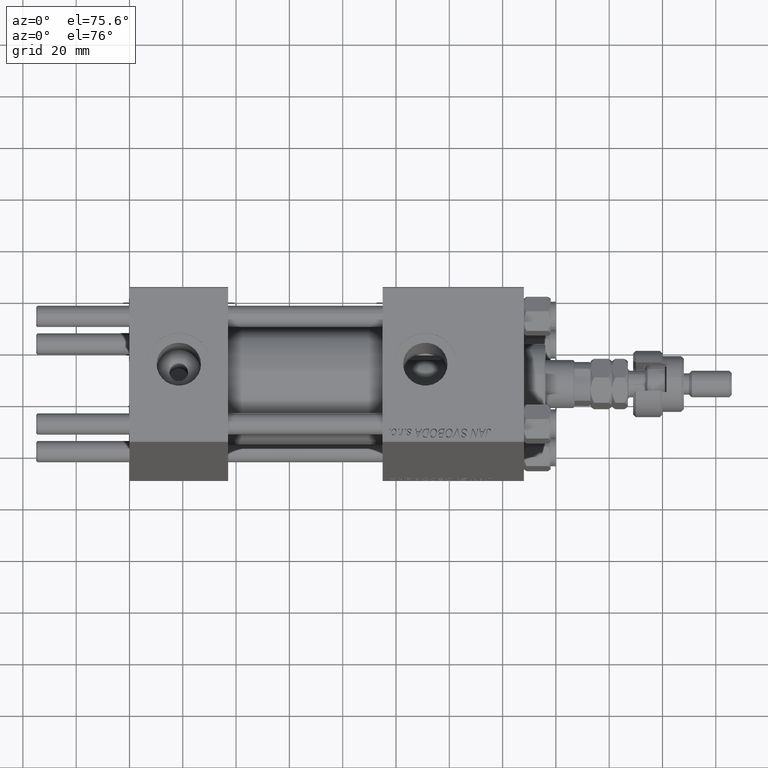
[diagram: clean part render]
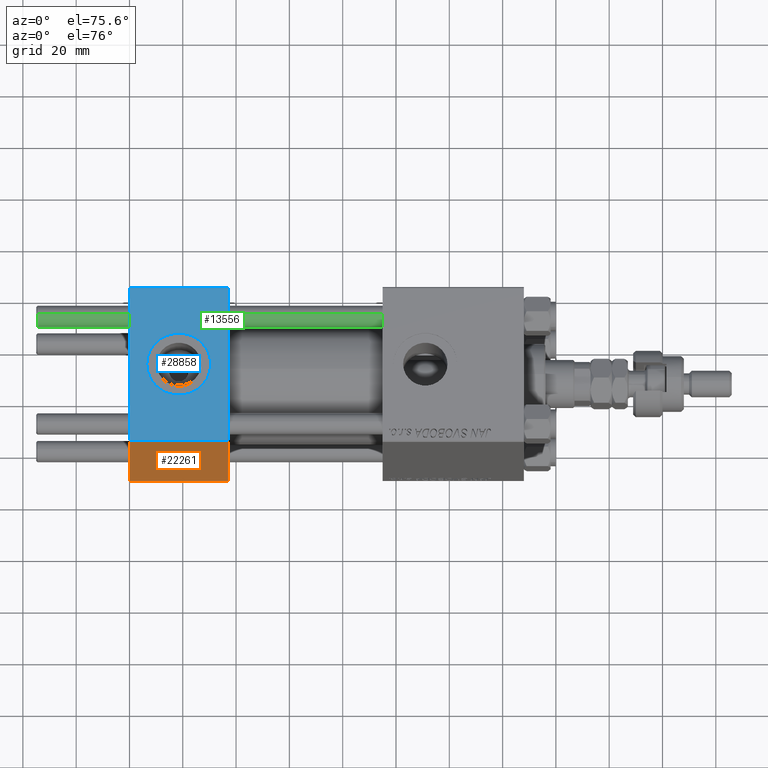
[diagram: same view with three faces highlighted in distinct colors, each labeled with its STEP entity id]
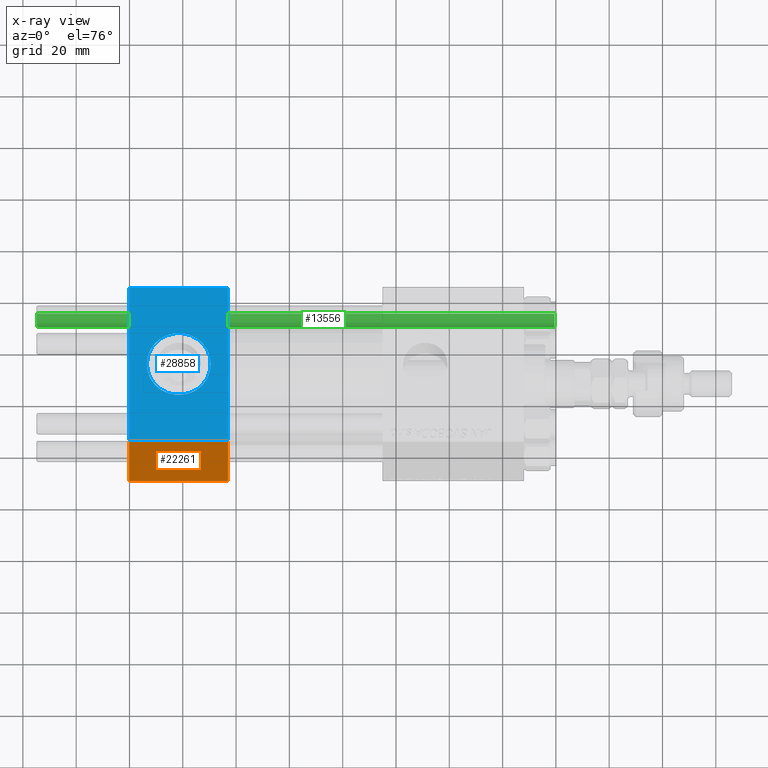
[diagram: x-ray of the same camera — body ghosted, the three highlighted faces saturated]
A machine part, auxiliary view with three faces highlighted in distinct colors.
The next image is the same camera in x-ray (body ghosted, the three faces saturated) — at least one of them is partly hidden behind the body in this view.
Their STEP definitions:

[orange] entity #22261 — the highlighted planar face has unit normal (0, 1, 0).
#1991 = VERTEX_POINT ( 'NONE', #2609 ) ;
#2609 = CARTESIAN_POINT ( 'NONE',  ( 0.000000000000000000, -30.00000000000000000, 29.49999999999999289 ) ) ;
#3968 = CARTESIAN_POINT ( 'NONE',  ( 37.00000000000000000, -30.00000000000000000, -29.50000000000001776 ) ) ;
#6026 = ORIENTED_EDGE ( 'NONE', *, *, #40388, .T. ) ;
#9506 = LINE ( 'NONE', #21505, #15268 ) ;
#11430 = DIRECTION ( 'NONE',  ( 1.000000000000000000, 0.000000000000000000, 0.000000000000000000 ) ) ;
#15268 = VECTOR ( 'NONE', #38299, 1000.000000000000000 ) ;
#15324 = VERTEX_POINT ( 'NONE', #3968 ) ;
#17210 = EDGE_CURVE ( 'NONE', #38322, #15324, #22176, .T. ) ;
#17588 = FACE_OUTER_BOUND ( 'NONE', #46040, .T. ) ;
#19551 = ORIENTED_EDGE ( 'NONE', *, *, #17210, .T. ) ;
#21505 = CARTESIAN_POINT ( 'NONE',  ( 37.00000000000000000, -30.00000000000000000, 29.99999999999999289 ) ) ;
#21845 = CARTESIAN_POINT ( 'NONE',  ( 37.00000000000000000, -30.00000000000000000, 29.99999999999999289 ) ) ;
#22176 = LINE ( 'NONE', #34153, #30881 ) ;
#22261 = ADVANCED_FACE ( 'NONE', ( #17588 ), #33823, .F. ) ;
#22731 = ORIENTED_EDGE ( 'NONE', *, *, #44581, .T. ) ;
#25846 = AXIS2_PLACEMENT_3D ( 'NONE', #21845, #41570, #34093 ) ;
#29792 = CARTESIAN_POINT ( 'NONE',  ( 0.000000000000000000, -30.00000000000000000, -29.50000000000001776 ) ) ;
#30624 = VECTOR ( 'NONE', #35816, 1000.000000000000000 ) ;
#30881 = VECTOR ( 'NONE', #11430, 1000.000000000000000 ) ;
#32319 = LINE ( 'NONE', #36084, #30624 ) ;
#33823 = PLANE ( 'NONE',  #25846 ) ;
#34093 = DIRECTION ( 'NONE',  ( 0.000000000000000000, -0.000000000000000000, 1.000000000000000000 ) ) ;
#34153 = CARTESIAN_POINT ( 'NONE',  ( 37.00000000000000000, -30.00000000000000000, -29.50000000000001776 ) ) ;
#35373 = DIRECTION ( 'NONE',  ( -1.000000000000000000, 0.000000000000000000, 0.000000000000000000 ) ) ;
#35816 = DIRECTION ( 'NONE',  ( 0.000000000000000000, 0.000000000000000000, -1.000000000000000000 ) ) ;
#36084 = CARTESIAN_POINT ( 'NONE',  ( 0.000000000000000000, -30.00000000000000000, 29.99999999999999289 ) ) ;
#38299 = DIRECTION ( 'NONE',  ( 0.000000000000000000, 0.000000000000000000, -1.000000000000000000 ) ) ;
#38322 = VERTEX_POINT ( 'NONE', #29792 ) ;
#40388 = EDGE_CURVE ( 'NONE', #43199, #1991, #47639, .T. ) ;
#40667 = VECTOR ( 'NONE', #35373, 1000.000000000000000 ) ;
#41570 = DIRECTION ( 'NONE',  ( -0.000000000000000000, 1.000000000000000000, 0.000000000000000000 ) ) ;
#42903 = CARTESIAN_POINT ( 'NONE',  ( 37.00000000000000000, -30.00000000000000000, 29.49999999999999289 ) ) ;
#43199 = VERTEX_POINT ( 'NONE', #42903 ) ;
#43375 = EDGE_CURVE ( 'NONE', #43199, #15324, #9506, .T. ) ;
#44581 = EDGE_CURVE ( 'NONE', #1991, #38322, #32319, .T. ) ;
#46040 = EDGE_LOOP ( 'NONE', ( #22731, #19551, #52325, #6026 ) ) ;
#47639 = LINE ( 'NONE', #51899, #40667 ) ;
#51899 = CARTESIAN_POINT ( 'NONE',  ( 37.00000000000000000, -30.00000000000000000, 29.49999999999999289 ) ) ;
#52325 = ORIENTED_EDGE ( 'NONE', *, *, #43375, .F. ) ;

[blue] entity #28858 — the highlighted planar face has unit normal (0, 0, -1).
#461 = CIRCLE ( 'NONE', #44735, 12.00000000000000000 ) ;
#863 = LINE ( 'NONE', #9111, #6737 ) ;
#1402 = ORIENTED_EDGE ( 'NONE', *, *, #46818, .F. ) ;
#1645 = AXIS2_PLACEMENT_3D ( 'NONE', #18842, #18050, #42577 ) ;
#2728 = CARTESIAN_POINT ( 'NONE',  ( 30.50000000000000000, -3.469446951953614978E-15, 29.99999999999999645 ) ) ;
#3384 = VERTEX_POINT ( 'NONE', #49493 ) ;
#3928 = ORIENTED_EDGE ( 'NONE', *, *, #9418, .T. ) ;
#4160 = FACE_OUTER_BOUND ( 'NONE', #40763, .T. ) ;
#5488 = AXIS2_PLACEMENT_3D ( 'NONE', #24404, #16412, #24911 ) ;
#6737 = VECTOR ( 'NONE', #25361, 1000.000000000000000 ) ;
#8415 = FACE_BOUND ( 'NONE', #18447, .T. ) ;
#9063 = LINE ( 'NONE', #9871, #48207 ) ;
#9111 = CARTESIAN_POINT ( 'NONE',  ( 37.00000000000000000, 29.99999999999999289, 30.00000000000000000 ) ) ;
#9396 = LINE ( 'NONE', #24848, #50174 ) ;
#9418 = EDGE_CURVE ( 'NONE', #30332, #33085, #9396, .T. ) ;
#9871 = CARTESIAN_POINT ( 'NONE',  ( 0.000000000000000000, 29.99999999999999289, 30.00000000000000000 ) ) ;
#11897 = PLANE ( 'NONE',  #5488 ) ;
#12856 = CARTESIAN_POINT ( 'NONE',  ( 0.000000000000000000, 29.49999999999999289, 30.00000000000000000 ) ) ;
#15854 = CARTESIAN_POINT ( 'NONE',  ( 6.499999999999997335, -1.999870792976790833E-15, 29.99999999999999645 ) ) ;
#16412 = DIRECTION ( 'NONE',  ( 0.000000000000000000, 1.156482317317871725E-16, -1.000000000000000000 ) ) ;
#18050 = DIRECTION ( 'NONE',  ( 0.000000000000000000, 0.000000000000000000, 1.000000000000000000 ) ) ;
#18447 = EDGE_LOOP ( 'NONE', ( #1402, #29137 ) ) ;
#18842 = CARTESIAN_POINT ( 'NONE',  ( 18.50000000000000000, -3.469446951953614978E-15, 29.99999999999999645 ) ) ;
#19022 = VERTEX_POINT ( 'NONE', #2728 ) ;
#21685 = ORIENTED_EDGE ( 'NONE', *, *, #46486, .T. ) ;
#23508 = VERTEX_POINT ( 'NONE', #26317 ) ;
#23733 = VECTOR ( 'NONE', #29091, 1000.000000000000000 ) ;
#24404 = CARTESIAN_POINT ( 'NONE',  ( 37.00000000000000000, 29.99999999999999289, 30.00000000000000000 ) ) ;
#24848 = CARTESIAN_POINT ( 'NONE',  ( 37.00000000000000000, -29.50000000000000000, 29.99999999999999289 ) ) ;
#24911 = DIRECTION ( 'NONE',  ( 0.000000000000000000, 1.000000000000000000, 1.156482317317871725E-16 ) ) ;
#25361 = DIRECTION ( 'NONE',  ( 0.000000000000000000, -1.000000000000000000, -1.156482317317871725E-16 ) ) ;
#25645 = DIRECTION ( 'NONE',  ( 1.000000000000000000, 0.000000000000000000, 0.000000000000000000 ) ) ;
#26317 = CARTESIAN_POINT ( 'NONE',  ( 0.000000000000000000, 29.49999999999999289, 30.00000000000000000 ) ) ;
#27056 = ORIENTED_EDGE ( 'NONE', *, *, #36061, .T. ) ;
#28858 = ADVANCED_FACE ( 'NONE', ( #8415, #4160 ), #11897, .F. ) ;
#29091 = DIRECTION ( 'NONE',  ( -1.000000000000000000, 0.000000000000000000, 0.000000000000000000 ) ) ;
#29137 = ORIENTED_EDGE ( 'NONE', *, *, #34647, .F. ) ;
#30332 = VERTEX_POINT ( 'NONE', #41593 ) ;
#31534 = DIRECTION ( 'NONE',  ( 1.000000000000000000, 0.000000000000000000, 0.000000000000000000 ) ) ;
#32508 = ORIENTED_EDGE ( 'NONE', *, *, #46508, .F. ) ;
#33085 = VERTEX_POINT ( 'NONE', #35322 ) ;
#34647 = EDGE_CURVE ( 'NONE', #51462, #19022, #461, .T. ) ;
#35010 = DIRECTION ( 'NONE',  ( 0.000000000000000000, 0.000000000000000000, 1.000000000000000000 ) ) ;
#35322 = CARTESIAN_POINT ( 'NONE',  ( 37.00000000000000000, -29.49999999999998579, 29.99999999999999289 ) ) ;
#35537 = CARTESIAN_POINT ( 'NONE',  ( 18.50000000000000000, -3.469446951953614978E-15, 29.99999999999999645 ) ) ;
#36061 = EDGE_CURVE ( 'NONE', #23508, #30332, #9063, .T. ) ;
#36839 = LINE ( 'NONE', #12856, #23733 ) ;
#40763 = EDGE_LOOP ( 'NONE', ( #27056, #3928, #32508, #21685 ) ) ;
#41593 = CARTESIAN_POINT ( 'NONE',  ( 0.000000000000000000, -29.49999999999998579, 29.99999999999999289 ) ) ;
#42119 = DIRECTION ( 'NONE',  ( 0.000000000000000000, -1.000000000000000000, -1.156482317317871725E-16 ) ) ;
#42577 = DIRECTION ( 'NONE',  ( 1.000000000000000000, 0.000000000000000000, 0.000000000000000000 ) ) ;
#44735 = AXIS2_PLACEMENT_3D ( 'NONE', #35537, #35010, #31534 ) ;
#46486 = EDGE_CURVE ( 'NONE', #3384, #23508, #36839, .T. ) ;
#46508 = EDGE_CURVE ( 'NONE', #3384, #33085, #863, .T. ) ;
#46818 = EDGE_CURVE ( 'NONE', #19022, #51462, #50978, .T. ) ;
#48207 = VECTOR ( 'NONE', #42119, 1000.000000000000000 ) ;
#49493 = CARTESIAN_POINT ( 'NONE',  ( 37.00000000000000000, 29.49999999999999289, 30.00000000000000000 ) ) ;
#50174 = VECTOR ( 'NONE', #25645, 1000.000000000000000 ) ;
#50978 = CIRCLE ( 'NONE', #1645, 12.00000000000000000 ) ;
#51462 = VERTEX_POINT ( 'NONE', #15854 ) ;

[green] entity #13556 — the highlighted cylindrical surface (edge-blend (fillet) strip) has radius 4 mm, axis along (-1, -0, -0).
#1042 = DIRECTION ( 'NONE',  ( -1.000000000000000000, 0.000000000000000000, 0.000000000000000000 ) ) ;
#2554 = EDGE_CURVE ( 'NONE', #5032, #39723, #47238, .T. ) ;
#2896 = ORIENTED_EDGE ( 'NONE', *, *, #6043, .T. ) ;
#5032 = VERTEX_POINT ( 'NONE', #35948 ) ;
#5636 = CARTESIAN_POINT ( 'NONE',  ( 0.000000000000000000, 0.000000000000000000, 0.5000000000000004441 ) ) ;
#6043 = EDGE_CURVE ( 'NONE', #39723, #28351, #26332, .T. ) ;
#8657 = AXIS2_PLACEMENT_3D ( 'NONE', #26081, #21285, #1042 ) ;
#10058 = VECTOR ( 'NONE', #43762, 1000.000000000000000 ) ;
#10222 = CARTESIAN_POINT ( 'NONE',  ( 4.000000000000000000, 4.898587196589412829E-16, 194.5000000000000568 ) ) ;
#13556 = ADVANCED_FACE ( 'NONE', ( #30066 ), #29535, .T. ) ;
#18010 = ORIENTED_EDGE ( 'NONE', *, *, #41980, .F. ) ;
#19065 = ORIENTED_EDGE ( 'NONE', *, *, #2554, .T. ) ;
#19362 = CIRCLE ( 'NONE', #34658, 4.000000000000000000 ) ;
#21285 = DIRECTION ( 'NONE',  ( -0.000000000000000000, -0.000000000000000000, -1.000000000000000000 ) ) ;
#22713 = EDGE_LOOP ( 'NONE', ( #18010, #48209, #19065, #2896 ) ) ;
#25007 = VERTEX_POINT ( 'NONE', #10222 ) ;
#25616 = DIRECTION ( 'NONE',  ( 1.000000000000000000, 0.000000000000000000, 0.000000000000000000 ) ) ;
#26081 = CARTESIAN_POINT ( 'NONE',  ( 0.000000000000000000, 0.000000000000000000, 195.0000000000000000 ) ) ;
#26292 = VECTOR ( 'NONE', #31445, 1000.000000000000000 ) ;
#26332 = CIRCLE ( 'NONE', #43387, 4.000000000000000000 ) ;
#26471 = DIRECTION ( 'NONE',  ( 0.000000000000000000, 0.000000000000000000, -1.000000000000000000 ) ) ;
#27254 = DIRECTION ( 'NONE',  ( 1.000000000000000000, 0.000000000000000000, 0.000000000000000000 ) ) ;
#28351 = VERTEX_POINT ( 'NONE', #38111 ) ;
#29535 = CYLINDRICAL_SURFACE ( 'NONE', #8657, 4.000000000000000000 ) ;
#30066 = FACE_OUTER_BOUND ( 'NONE', #22713, .T. ) ;
#30703 = CARTESIAN_POINT ( 'NONE',  ( -4.000000000000000000, 0.000000000000000000, 195.0000000000000000 ) ) ;
#31445 = DIRECTION ( 'NONE',  ( -0.000000000000000000, -0.000000000000000000, -1.000000000000000000 ) ) ;
#33869 = DIRECTION ( 'NONE',  ( -0.000000000000000000, -0.000000000000000000, 1.000000000000000000 ) ) ;
#34658 = AXIS2_PLACEMENT_3D ( 'NONE', #35773, #26471, #27254 ) ;
#35455 = LINE ( 'NONE', #51718, #26292 ) ;
#35773 = CARTESIAN_POINT ( 'NONE',  ( 0.000000000000000000, 0.000000000000000000, 194.5000000000000568 ) ) ;
#35948 = CARTESIAN_POINT ( 'NONE',  ( -4.000000000000000000, 0.000000000000000000, 194.5000000000000568 ) ) ;
#38111 = CARTESIAN_POINT ( 'NONE',  ( 4.000000000000000000, 4.898587196589412829E-16, 0.5000000000000004441 ) ) ;
#38686 = EDGE_CURVE ( 'NONE', #25007, #5032, #19362, .T. ) ;
#39723 = VERTEX_POINT ( 'NONE', #45147 ) ;
#41980 = EDGE_CURVE ( 'NONE', #25007, #28351, #35455, .T. ) ;
#43387 = AXIS2_PLACEMENT_3D ( 'NONE', #5636, #33869, #25616 ) ;
#43762 = DIRECTION ( 'NONE',  ( -0.000000000000000000, -0.000000000000000000, -1.000000000000000000 ) ) ;
#45147 = CARTESIAN_POINT ( 'NONE',  ( -4.000000000000000000, 0.000000000000000000, 0.5000000000000004441 ) ) ;
#47238 = LINE ( 'NONE', #30703, #10058 ) ;
#48209 = ORIENTED_EDGE ( 'NONE', *, *, #38686, .T. ) ;
#51718 = CARTESIAN_POINT ( 'NONE',  ( 4.000000000000000000, 4.898587196589412829E-16, 195.0000000000000000 ) ) ;